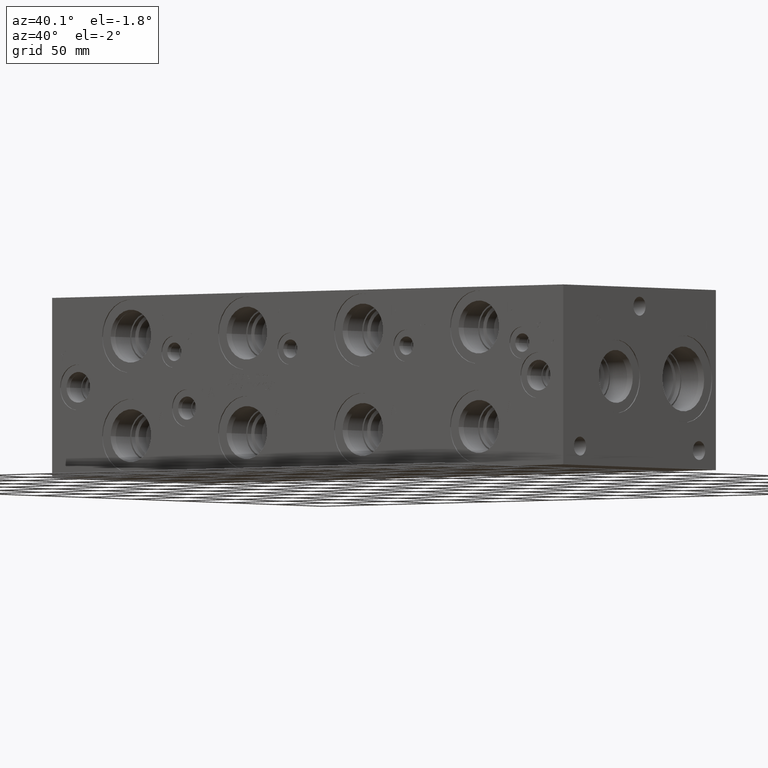
[diagram: clean part render]
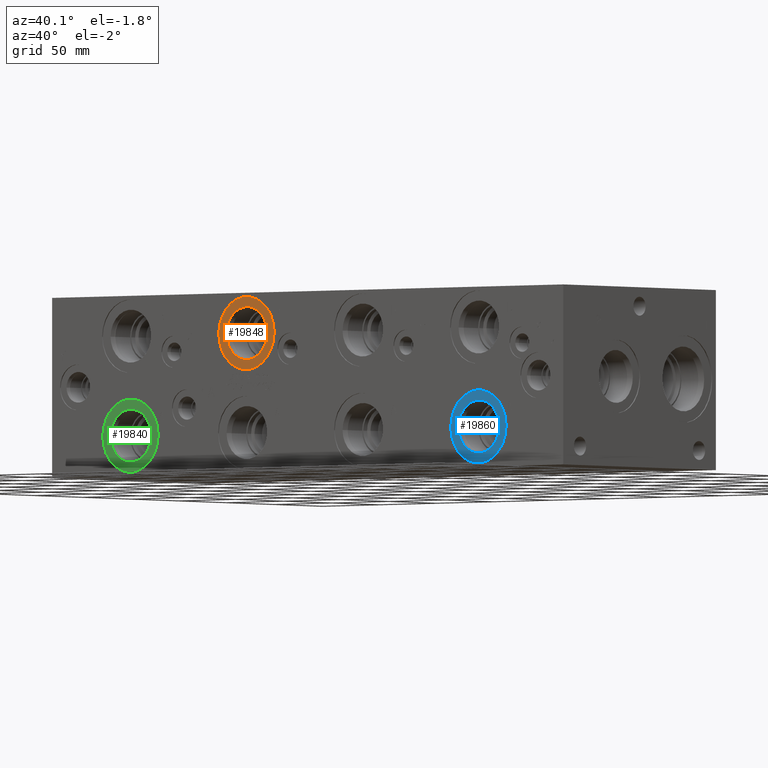
[diagram: same view with three faces highlighted in distinct colors, each labeled with its STEP entity id]
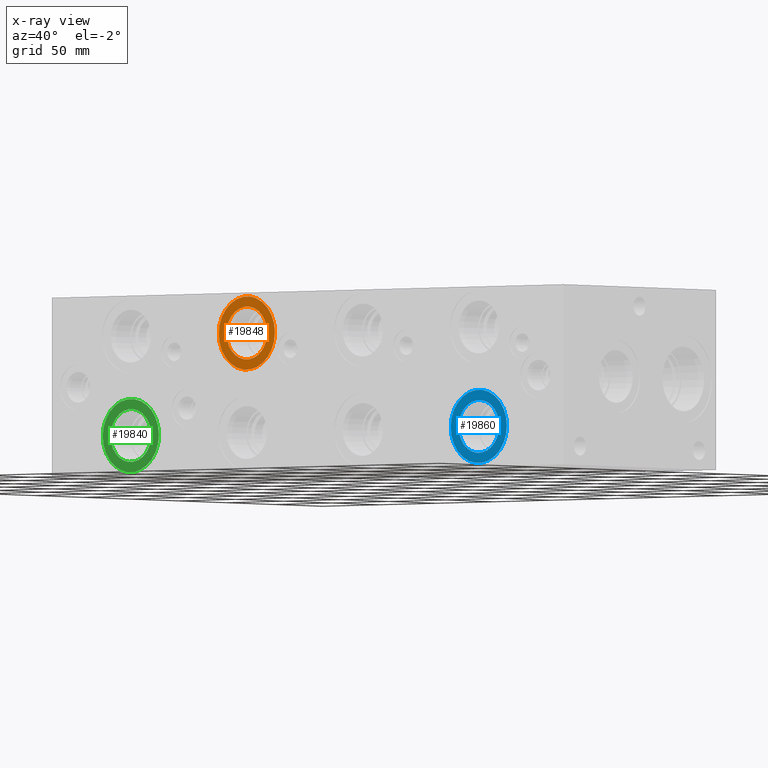
[diagram: x-ray of the same camera — body ghosted, the three highlighted faces saturated]
A machine part, auxiliary view with three faces highlighted in distinct colors.
The next image is the same camera in x-ray (body ghosted, the three faces saturated) — at least one of them is partly hidden behind the body in this view.
Their STEP definitions:

[orange] entity #19848 — the highlighted planar face has unit normal (0, -1, 0).
#633=CIRCLE('',#21041,24.5618);
#634=CIRCLE('',#21042,24.5618);
#635=CIRCLE('',#21043,17.7546);
#1183=FACE_BOUND('',#3699,.T.);
#2526=FACE_OUTER_BOUND('',#3698,.T.);
#3698=EDGE_LOOP('',(#16514,#16515));
#3699=EDGE_LOOP('',(#16516));
#9043=VERTEX_POINT('',#33059);
#9044=VERTEX_POINT('',#33060);
#9045=VERTEX_POINT('',#33063);
#11670=EDGE_CURVE('',#9043,#9044,#633,.T.);
#11671=EDGE_CURVE('',#9044,#9043,#634,.T.);
#11672=EDGE_CURVE('',#9045,#9045,#635,.T.);
#16514=ORIENTED_EDGE('',*,*,#11670,.T.);
#16515=ORIENTED_EDGE('',*,*,#11671,.T.);
#16516=ORIENTED_EDGE('',*,*,#11672,.F.);
#18395=PLANE('',#21040);
#19848=ADVANCED_FACE('',(#2526,#1183),#18395,.T.);
#21040=AXIS2_PLACEMENT_3D('',#33058,#25117,#25118);
#21041=AXIS2_PLACEMENT_3D('',#33061,#25119,#25120);
#21042=AXIS2_PLACEMENT_3D('',#33062,#25121,#25122);
#21043=AXIS2_PLACEMENT_3D('',#33064,#25123,#25124);
#25117=DIRECTION('center_axis',(0.,-1.,0.));
#25118=DIRECTION('ref_axis',(1.,0.,0.));
#25119=DIRECTION('center_axis',(0.,-1.,0.));
#25120=DIRECTION('ref_axis',(1.,0.,0.));
#25121=DIRECTION('center_axis',(0.,-1.,0.));
#25122=DIRECTION('ref_axis',(1.,0.,0.));
#25123=DIRECTION('center_axis',(0.,-1.,0.));
#25124=DIRECTION('ref_axis',(1.,0.,0.));
#33058=CARTESIAN_POINT('Origin',(169.8752,0.7874,93.6498));
#33059=CARTESIAN_POINT('',(194.437,0.7874,93.6498));
#33060=CARTESIAN_POINT('',(145.3134,0.7874,93.6498));
#33061=CARTESIAN_POINT('Origin',(169.8752,0.7874,93.6498));
#33062=CARTESIAN_POINT('Origin',(169.8752,0.7874,93.6498));
#33063=CARTESIAN_POINT('',(152.1206,0.7874,93.6498));
#33064=CARTESIAN_POINT('Origin',(169.8752,0.7874,93.6498));

[blue] entity #19860 — the highlighted planar face has unit normal (0, -1, 0).
#642=CIRCLE('',#21062,24.5618);
#643=CIRCLE('',#21063,24.5618);
#644=CIRCLE('',#21064,17.7546);
#1186=FACE_BOUND('',#3714,.T.);
#2538=FACE_OUTER_BOUND('',#3713,.T.);
#3713=EDGE_LOOP('',(#16565,#16566));
#3714=EDGE_LOOP('',(#16567));
#9055=VERTEX_POINT('',#33101);
#9056=VERTEX_POINT('',#33102);
#9057=VERTEX_POINT('',#33105);
#11688=EDGE_CURVE('',#9055,#9056,#642,.T.);
#11689=EDGE_CURVE('',#9056,#9055,#643,.T.);
#11690=EDGE_CURVE('',#9057,#9057,#644,.T.);
#16565=ORIENTED_EDGE('',*,*,#11688,.T.);
#16566=ORIENTED_EDGE('',*,*,#11689,.T.);
#16567=ORIENTED_EDGE('',*,*,#11690,.F.);
#18398=PLANE('',#21061);
#19860=ADVANCED_FACE('',(#2538,#1186),#18398,.T.);
#21061=AXIS2_PLACEMENT_3D('',#33100,#25168,#25169);
#21062=AXIS2_PLACEMENT_3D('',#33103,#25170,#25171);
#21063=AXIS2_PLACEMENT_3D('',#33104,#25172,#25173);
#21064=AXIS2_PLACEMENT_3D('',#33106,#25174,#25175);
#25168=DIRECTION('center_axis',(0.,-1.,0.));
#25169=DIRECTION('ref_axis',(1.,0.,0.));
#25170=DIRECTION('center_axis',(0.,-1.,0.));
#25171=DIRECTION('ref_axis',(1.,0.,0.));
#25172=DIRECTION('center_axis',(0.,-1.,0.));
#25173=DIRECTION('ref_axis',(1.,0.,0.));
#25174=DIRECTION('center_axis',(0.,-1.,0.));
#25175=DIRECTION('ref_axis',(1.,0.,0.));
#33100=CARTESIAN_POINT('Origin',(373.0752,0.7874,26.9748));
#33101=CARTESIAN_POINT('',(397.637,0.7874,26.9748));
#33102=CARTESIAN_POINT('',(348.5134,0.7874,26.9748));
#33103=CARTESIAN_POINT('Origin',(373.0752,0.7874,26.9748));
#33104=CARTESIAN_POINT('Origin',(373.0752,0.7874,26.9748));
#33105=CARTESIAN_POINT('',(355.3206,0.7874,26.9748));
#33106=CARTESIAN_POINT('Origin',(373.0752,0.7874,26.9748));

[green] entity #19840 — the highlighted planar face has unit normal (0, -1, 0).
#627=CIRCLE('',#21027,24.5618);
#628=CIRCLE('',#21028,24.5618);
#629=CIRCLE('',#21029,17.7546);
#1181=FACE_BOUND('',#3689,.T.);
#2518=FACE_OUTER_BOUND('',#3688,.T.);
#3688=EDGE_LOOP('',(#16480,#16481));
#3689=EDGE_LOOP('',(#16482));
#9035=VERTEX_POINT('',#33031);
#9036=VERTEX_POINT('',#33032);
#9037=VERTEX_POINT('',#33035);
#11658=EDGE_CURVE('',#9035,#9036,#627,.T.);
#11659=EDGE_CURVE('',#9036,#9035,#628,.T.);
#11660=EDGE_CURVE('',#9037,#9037,#629,.T.);
#16480=ORIENTED_EDGE('',*,*,#11658,.T.);
#16481=ORIENTED_EDGE('',*,*,#11659,.T.);
#16482=ORIENTED_EDGE('',*,*,#11660,.F.);
#18393=PLANE('',#21026);
#19840=ADVANCED_FACE('',(#2518,#1181),#18393,.T.);
#21026=AXIS2_PLACEMENT_3D('',#33030,#25083,#25084);
#21027=AXIS2_PLACEMENT_3D('',#33033,#25085,#25086);
#21028=AXIS2_PLACEMENT_3D('',#33034,#25087,#25088);
#21029=AXIS2_PLACEMENT_3D('',#33036,#25089,#25090);
#25083=DIRECTION('center_axis',(0.,-1.,0.));
#25084=DIRECTION('ref_axis',(1.,0.,0.));
#25085=DIRECTION('center_axis',(0.,-1.,0.));
#25086=DIRECTION('ref_axis',(1.,0.,0.));
#25087=DIRECTION('center_axis',(0.,-1.,0.));
#25088=DIRECTION('ref_axis',(1.,0.,0.));
#25089=DIRECTION('center_axis',(0.,-1.,0.));
#25090=DIRECTION('ref_axis',(1.,0.,0.));
#33030=CARTESIAN_POINT('Origin',(68.2752,0.7874,26.9748));
#33031=CARTESIAN_POINT('',(92.837,0.7874,26.9748));
#33032=CARTESIAN_POINT('',(43.7134,0.7874,26.9748));
#33033=CARTESIAN_POINT('Origin',(68.2752,0.7874,26.9748));
#33034=CARTESIAN_POINT('Origin',(68.2752,0.7874,26.9748));
#33035=CARTESIAN_POINT('',(50.5206,0.7874,26.9748));
#33036=CARTESIAN_POINT('Origin',(68.2752,0.7874,26.9748));